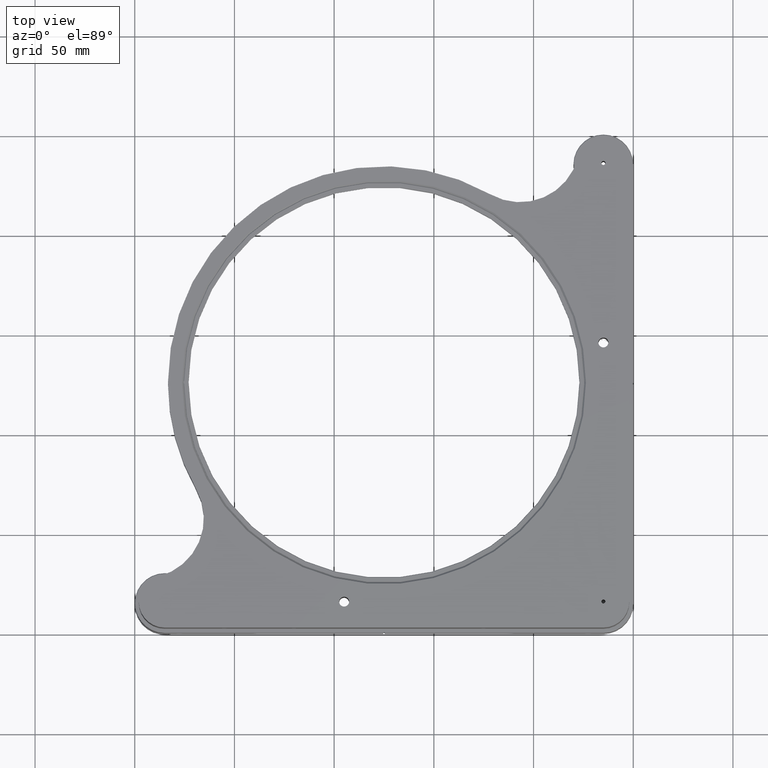
[diagram: clean part render]
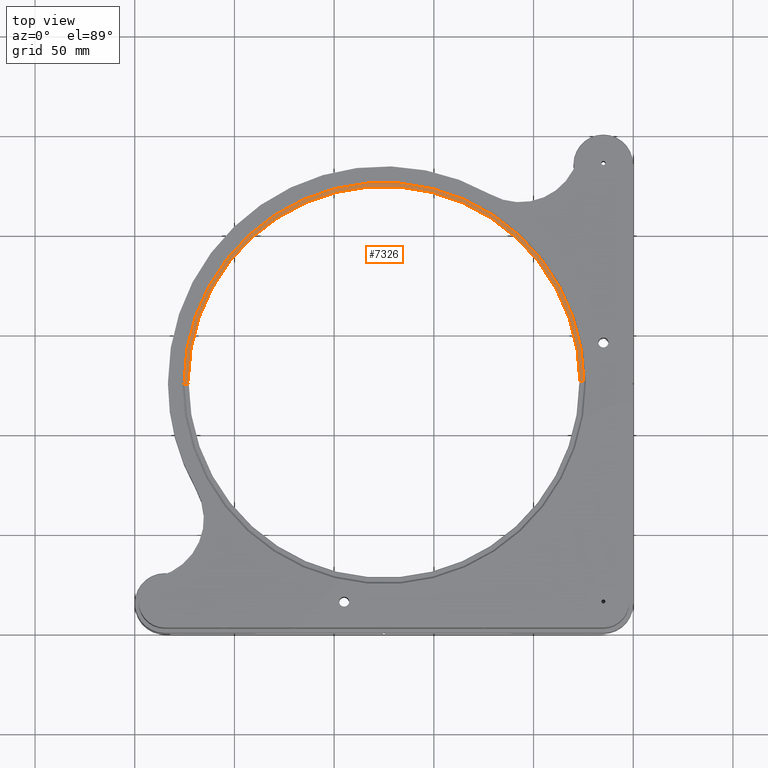
[diagram: same view with one face highlighted and labeled with its STEP entity id]
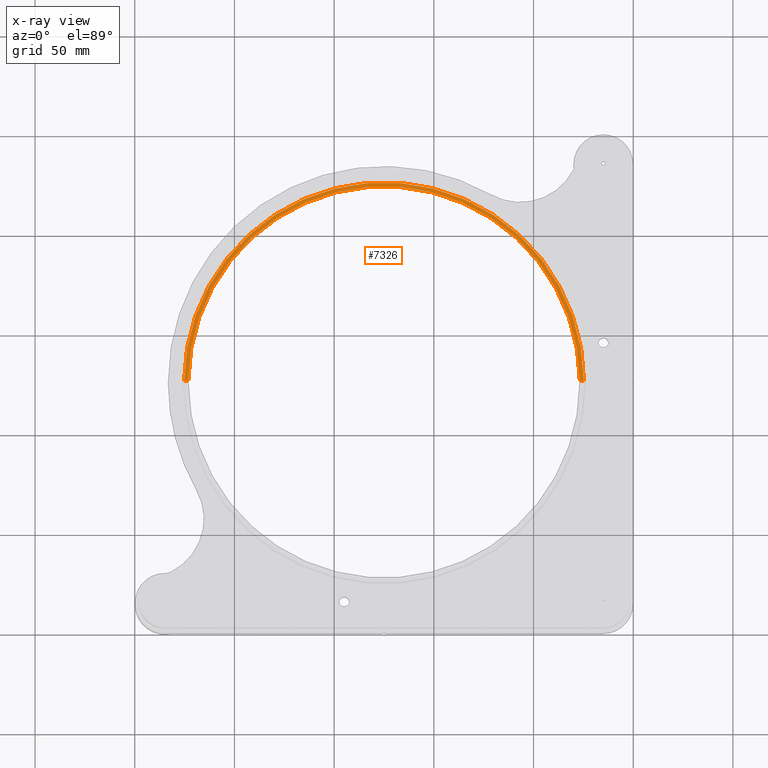
[diagram: x-ray of the same camera — body ghosted, the highlighted face saturated]
A machine part, top view. The second image highlights one B-rep face of the part: STEP entity #7326.
The next image is the same camera in x-ray: the body ghosted, the highlighted face saturated — about 0% of this face is hidden behind the body in this view.
In plain terms, the highlighted planar face has unit normal (0, 0, 1).
Its self-contained STEP definition (entity closure, byte-faithful):
#286 = AXIS2_PLACEMENT_3D ( 'NONE', #2935, #4064, #11584 ) ;
#426 = DIRECTION ( 'NONE',  ( -1.000000000000000000, -0.000000000000000000, -0.000000000000000000 ) ) ;
#780 = CARTESIAN_POINT ( 'NONE',  ( -225.2482044726974948, 125.5999999999990990, 58.47056274847701474 ) ) ;
#1000 = CARTESIAN_POINT ( 'NONE',  ( -124.9999999999987921, 124.9999999999991189, 58.47056274847701474 ) ) ;
#1318 = EDGE_CURVE ( 'NONE', #8368, #4707, #2904, .T. ) ;
#1429 = CARTESIAN_POINT ( 'NONE',  ( -124.9999999999987921, 124.9999999999991189, 58.47056274847701474 ) ) ;
#1542 = EDGE_LOOP ( 'NONE', ( #12429, #10334, #9420, #7491 ) ) ;
#2093 = EDGE_CURVE ( 'NONE', #5897, #5234, #4535, .T. ) ;
#2134 = EDGE_CURVE ( 'NONE', #5897, #4707, #11036, .T. ) ;
#2560 = CARTESIAN_POINT ( 'NONE',  ( -26.75183207814898978, 125.5999999999990990, 58.47056274847701474 ) ) ;
#2721 = VECTOR ( 'NONE', #426, 1000.000000000000000 ) ;
#2904 = CIRCLE ( 'NONE', #286, 98.24999999999997158 ) ;
#2935 = CARTESIAN_POINT ( 'NONE',  ( -124.9999999999987921, 124.9999999999991189, 58.47056274847701474 ) ) ;
#3015 = DIRECTION ( 'NONE',  ( 0.000000000000000000, 0.000000000000000000, 1.000000000000000000 ) ) ;
#3327 = DIRECTION ( 'NONE',  ( 0.000000000000000000, 0.000000000000000000, 1.000000000000000000 ) ) ;
#4064 = DIRECTION ( 'NONE',  ( -0.000000000000000000, -0.000000000000000000, -1.000000000000000000 ) ) ;
#4101 = CARTESIAN_POINT ( 'NONE',  ( -50125.00000000001455, 125.5999999999990990, 58.47056274847701474 ) ) ;
#4535 = CIRCLE ( 'NONE', #12141, 100.2500000000000568 ) ;
#4707 = VERTEX_POINT ( 'NONE', #2560 ) ;
#5040 = CARTESIAN_POINT ( 'NONE',  ( -223.2481679218485908, 125.5999999999990990, 58.47056274847701474 ) ) ;
#5234 = VERTEX_POINT ( 'NONE', #780 ) ;
#5370 = AXIS2_PLACEMENT_3D ( 'NONE', #1000, #3015, #7630 ) ;
#5897 = VERTEX_POINT ( 'NONE', #8010 ) ;
#5938 = PLANE ( 'NONE',  #5370 ) ;
#6068 = LINE ( 'NONE', #4101, #11794 ) ;
#6940 = DIRECTION ( 'NONE',  ( -1.000000000000000000, -0.000000000000000000, -0.000000000000000000 ) ) ;
#7111 = CARTESIAN_POINT ( 'NONE',  ( -50125.00000000001455, 125.5999999999990990, 58.47056274847701474 ) ) ;
#7326 = ADVANCED_FACE ( 'NONE', ( #9620 ), #5938, .T. ) ;
#7491 = ORIENTED_EDGE ( 'NONE', *, *, #1318, .T. ) ;
#7630 = DIRECTION ( 'NONE',  ( 1.000000000000000000, 0.000000000000000000, -0.000000000000000000 ) ) ;
#8010 = CARTESIAN_POINT ( 'NONE',  ( -24.75179552730008581, 125.5999999999990990, 58.47056274847701474 ) ) ;
#8368 = VERTEX_POINT ( 'NONE', #5040 ) ;
#9420 = ORIENTED_EDGE ( 'NONE', *, *, #9745, .F. ) ;
#9620 = FACE_OUTER_BOUND ( 'NONE', #1542, .T. ) ;
#9745 = EDGE_CURVE ( 'NONE', #8368, #5234, #6068, .T. ) ;
#10106 = DIRECTION ( 'NONE',  ( 1.000000000000000000, 0.000000000000000000, 0.000000000000000000 ) ) ;
#10334 = ORIENTED_EDGE ( 'NONE', *, *, #2093, .T. ) ;
#11036 = LINE ( 'NONE', #7111, #2721 ) ;
#11584 = DIRECTION ( 'NONE',  ( 1.000000000000000000, 0.000000000000000000, 0.000000000000000000 ) ) ;
#11794 = VECTOR ( 'NONE', #6940, 1000.000000000000000 ) ;
#12141 = AXIS2_PLACEMENT_3D ( 'NONE', #1429, #3327, #10106 ) ;
#12429 = ORIENTED_EDGE ( 'NONE', *, *, #2134, .F. ) ;